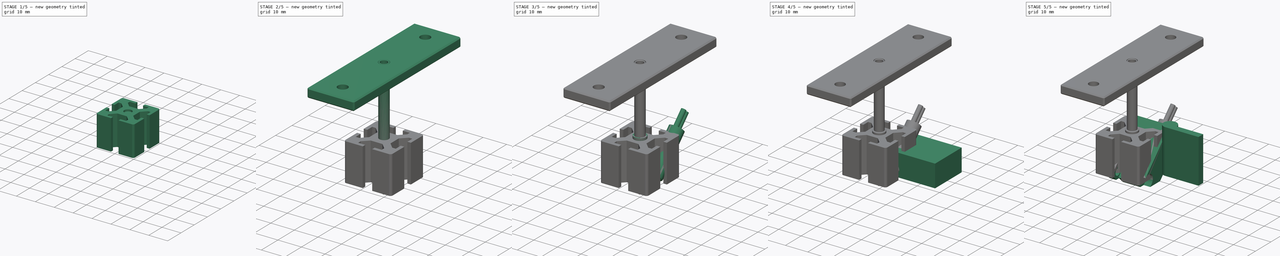
[diagram: build sequence overview — one tinted view per stage of 5, left to right]
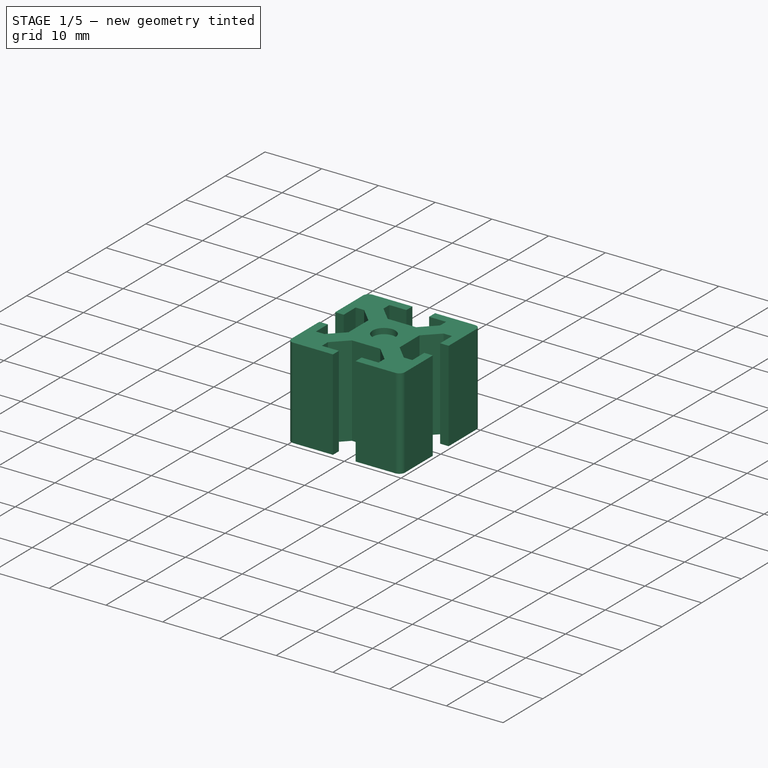
[diagram: stage 1 of 5 — iso view after this stage's code; geometry added in this stage tinted green]
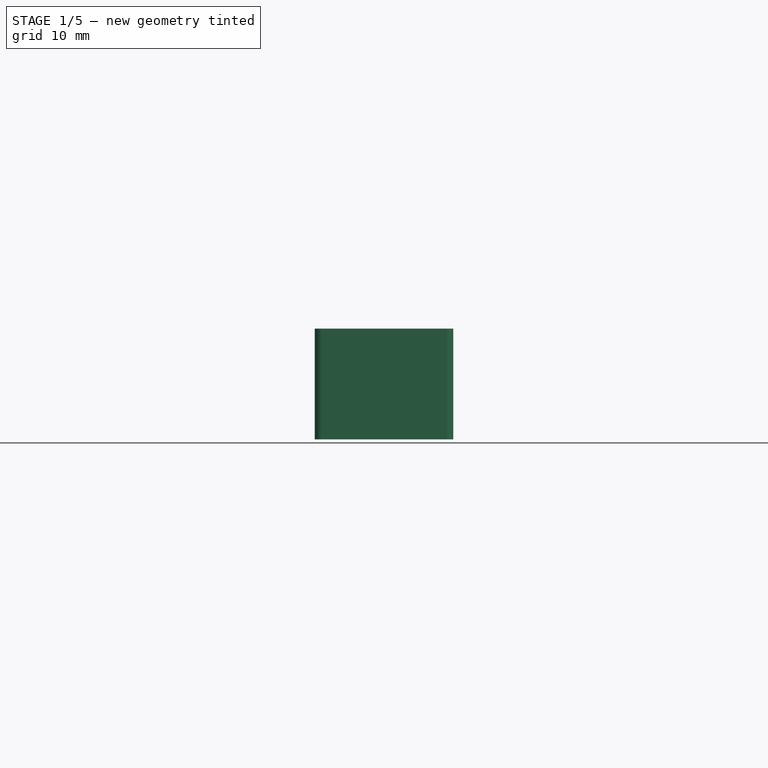
[diagram: stage 1 of 5 — front view after this stage's code; geometry added in this stage tinted green]
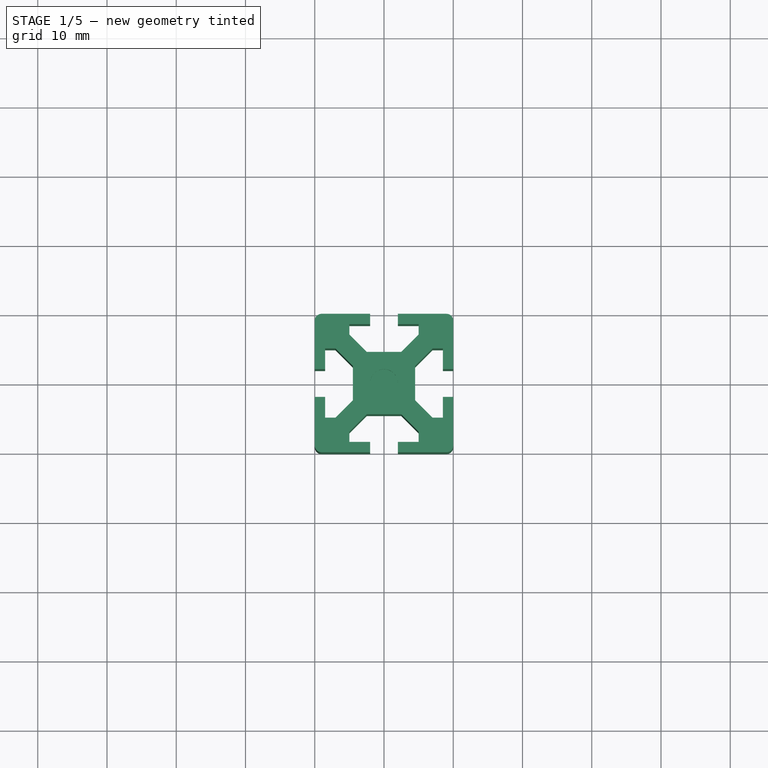
[diagram: stage 1 of 5 — top view after this stage's code; geometry added in this stage tinted green]
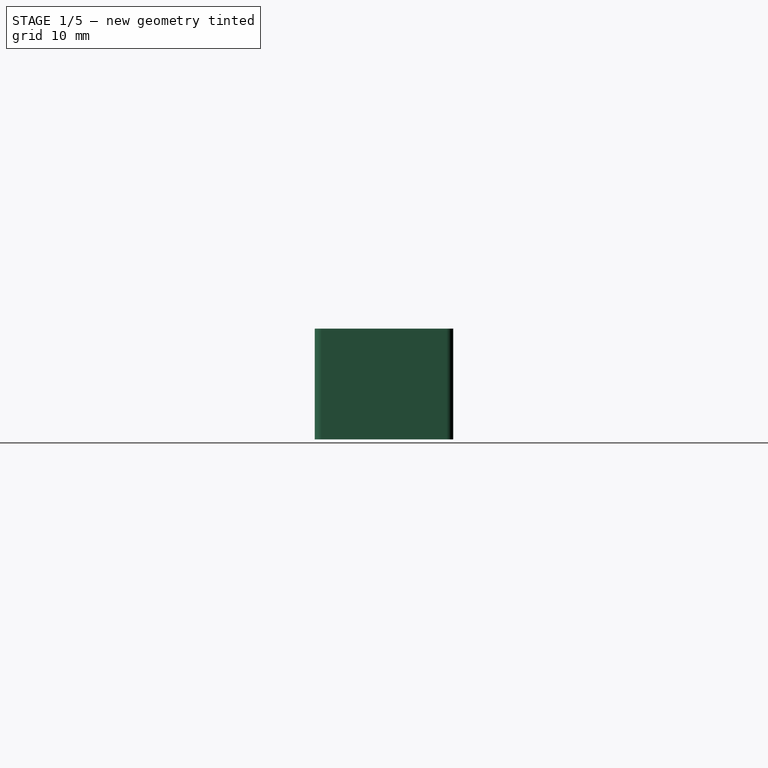
[diagram: stage 1 of 5 — right view after this stage's code; geometry added in this stage tinted green]
FCSTD DOCUMENT  (FreeCAD 0.15R4671 (Git))
Label: CatNozzle
License: CC-BY 3.0
LicenseURL: http://creativecommons.org/licenses/by/3.0/
objects: Sketcher::SketchObject×9, Part::Cylinder×9, PartDesign::Pocket×7, App::DocumentObjectGroup×7, PartDesign::Chamfer×6, Part::Feature×4, Part::MultiFuse×4, Part::Box×2, PartDesign::Pad×2, Part::Cut×2, Part::Chamfer×2, Part::Mirroring×2, Part::Fillet×1
note: 59 computed .brp shape members not serialized (recipe doc carries the construction recipe); baked Part::Feature solids carry a one-line shape summary decoded from their .brp

FEATURE [App::DocumentObjectGroup] Grupo005  label="PletinaSup"
  Group = -> [Chamfer007,Box001,Pocket008,Chamfer006]
FEATURE [Part::Cylinder] Cylinder008  label="Cilindro008"
  Angle = 360
  Height = 15
  Radius = 3
FEATURE [Part::Chamfer] Chamfer008
  Base = -> Cylinder008
  Edges = 1 edges r=2.5: [Edge3]
FEATURE [Sketcher::SketchObject] Sketch009
  sketch-geometry (16):
    g0: ArcOfCircle CenterX=0 CenterY=0 CenterZ=0 NormalX=0 NormalY=0 NormalZ=1 Radius=2 StartAngle=1.5708 EndAngle=3.14159
    g1: LineSegment StartX=-2 StartY=0 StartZ=0 EndX=-4.5 EndY=0 EndZ=0
    g2: LineSegment StartX=0 StartY=2 StartZ=0 EndX=0 EndY=4.5 EndZ=0
    g3: LineSegment StartX=-4.5 StartY=0 StartZ=0 EndX=-4.5 EndY=2.5 EndZ=0
    g4: LineSegment StartX=0 StartY=4.5 StartZ=0 EndX=-2.5 EndY=4.5 EndZ=0
    g5: LineSegment StartX=-4.5 StartY=2.5 StartZ=0 EndX=-7.00001 EndY=4.99999 EndZ=0
    g6: LineSegment StartX=-2.5 StartY=4.5 StartZ=0 EndX=-5 EndY=7 EndZ=0
    g7: LineSegment StartX=-7.00001 StartY=4.99999 StartZ=0 EndX=-8.50001 EndY=4.99999 EndZ=0
    g8: LineSegment StartX=-8.50001 StartY=4.99999 StartZ=0 EndX=-8.50001 EndY=1.99999 EndZ=0
    g9: LineSegment StartX=-8.50001 StartY=1.99999 StartZ=0 EndX=-10 EndY=1.99999 EndZ=0
    g10: LineSegment StartX=-5 StartY=7 StartZ=0 EndX=-5 EndY=8.5 EndZ=0
    g11: LineSegment StartX=-5 StartY=8.5 StartZ=0 EndX=-2 EndY=8.5 EndZ=0
    g12: LineSegment StartX=-2 StartY=8.5 StartZ=0 EndX=-2 EndY=10 EndZ=0
    g13: LineSegment StartX=-10 StartY=1.99999 StartZ=0 EndX=-10 EndY=9 EndZ=0
    g14: LineSegment StartX=-9.00001 StartY=10 StartZ=0 EndX=-2 EndY=10 EndZ=0
    g15: ArcOfCircle CenterX=-9.00001 CenterY=9 CenterZ=0 NormalX=0 NormalY=0 NormalZ=1 Radius=1 StartAngle=1.5708 EndAngle=3.14159
  constraints (47):
    c: Coincident(g0,g-1)
    c: Radius(g0) = 2
    c: Horizontal(g1)
    c: Vertical(g2)
    c: PointOnObject(g2,g-2)
    c: PointOnObject(g1,g-1)
    c: Coincident(g0,g2)
    c: Coincident(g0,g1)
    c: Equal(g1,g2)
    c: Coincident(g3,g1)
    c: Vertical(g3)
    c: Coincident(g4,g2)
    c: Horizontal(g4)
    c: Equal(g4,g3)
    c: DistanceY(g3) = 2.5
    c: DistanceX(g1) = -2.5
    c: Coincident(g5,g3)
    c: Coincident(g6,g4)
    c: Equal(g6,g5)
    c: Coincident(g5,g7)
    c: Horizontal(g7)
    c: Coincident(g7,g8)
    c: Vertical(g8)
    c: Coincident(g8,g9)
    c: Horizontal(g9)
    c: Coincident(g6,g10)
    c: Vertical(g10)
    c: Coincident(g10,g11)
    c: Horizontal(g11)
    c: Coincident(g11,g12)
    c: Vertical(g12)
    c: Tangent(g12,g0)
    c: Equal(g7,g10)
    c: Equal(g11,g8)
    c: Equal(g12,g9)
    c: DistanceX(g9) = -1.5
    c: DistanceX(g7) = -1.5
    c: Coincident(g9,g13)
    c: Vertical(g13)
    c: Coincident(g14,g12)
    c: Horizontal(g14)
    c: Tangent(g14,g15)
    c: Tangent(g13,g15)
    c: Radius(g15) = 1
    c: Equal(g14,g13)
    c: DistanceY(g8) = -3
    c: DistanceY(g-1,g12) = 10
FEATURE [PartDesign::Pad] Pad002
  Length = 16
  Length2 = 100
  Sketch = -> Sketch009
  Type = 0
FEATURE [Part::Mirroring] Part__Mirroring  label="Pad002 (Mirror #1)"
  Base = (0,0,0)
  Normal = (0,1,0)
  Source = -> Pad002
FEATURE [Part::MultiFuse] Fusion002
  Shapes = -> [Part__Mirroring,Pad002]
FEATURE [Part::Mirroring] Part__Mirroring001  label="Fusion002 (Mirror #2)"
  Base = (0,0,0)
  Normal = (1,0,0)
  Source = -> Fusion002
FEATURE [Part::MultiFuse] Fusion003
  Shapes = -> [Fusion002,Part__Mirroring001]
FEATURE [Part::Feature] Fusion004  label="PerfilTSlot"
  Placement = pos=(0,0,25) rot=(0,0,1;0rad)
  shape: bbox 20 x 20 x 16 mm, 51 faces (baked)
FEATURE [App::DocumentObjectGroup] Grupo006  label="Coldend"
  Group = -> [Fusion003,Fusion004]
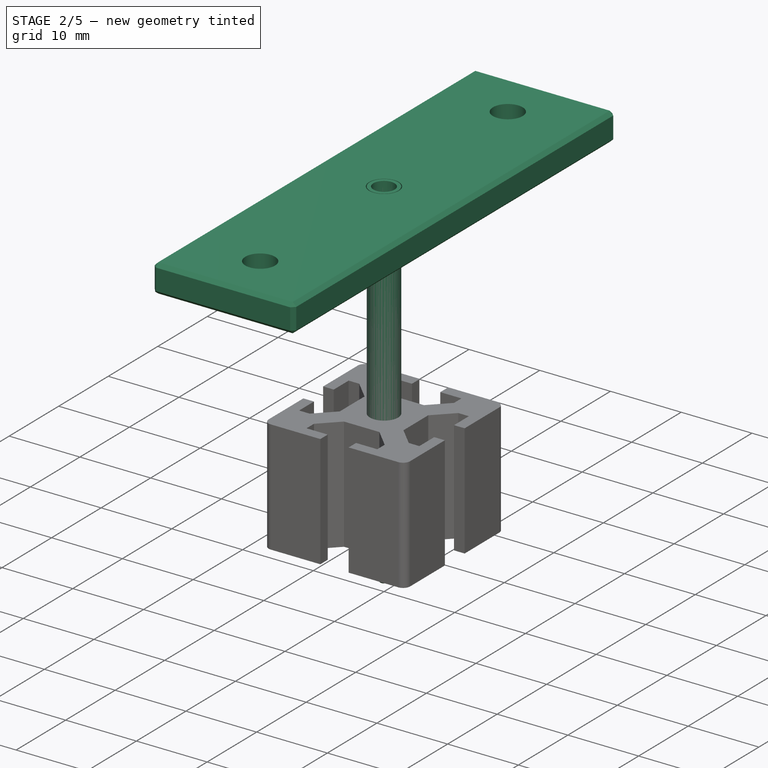
[diagram: stage 2 of 5 — iso view after this stage's code; geometry added in this stage tinted green]
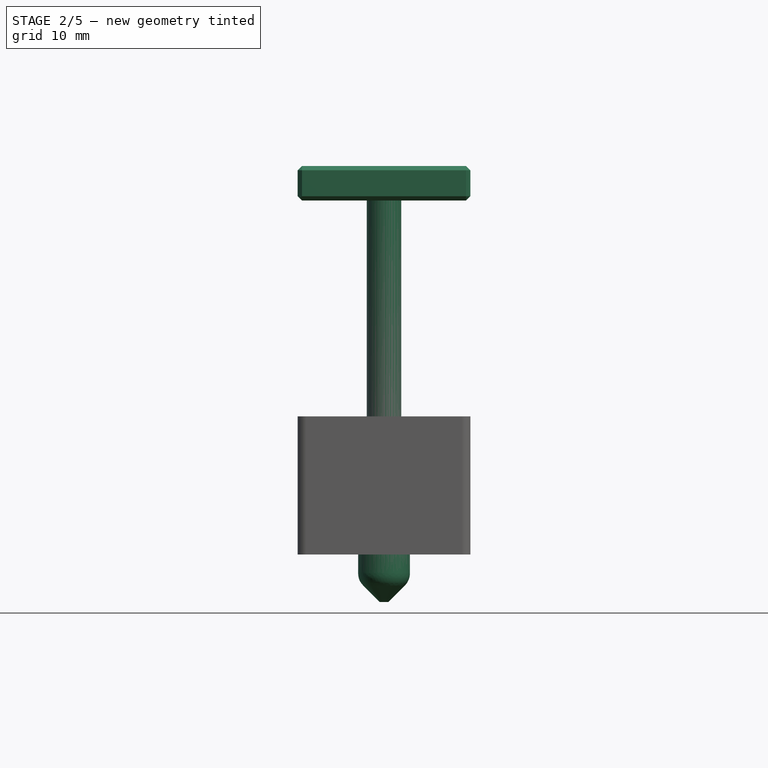
[diagram: stage 2 of 5 — front view after this stage's code; geometry added in this stage tinted green]
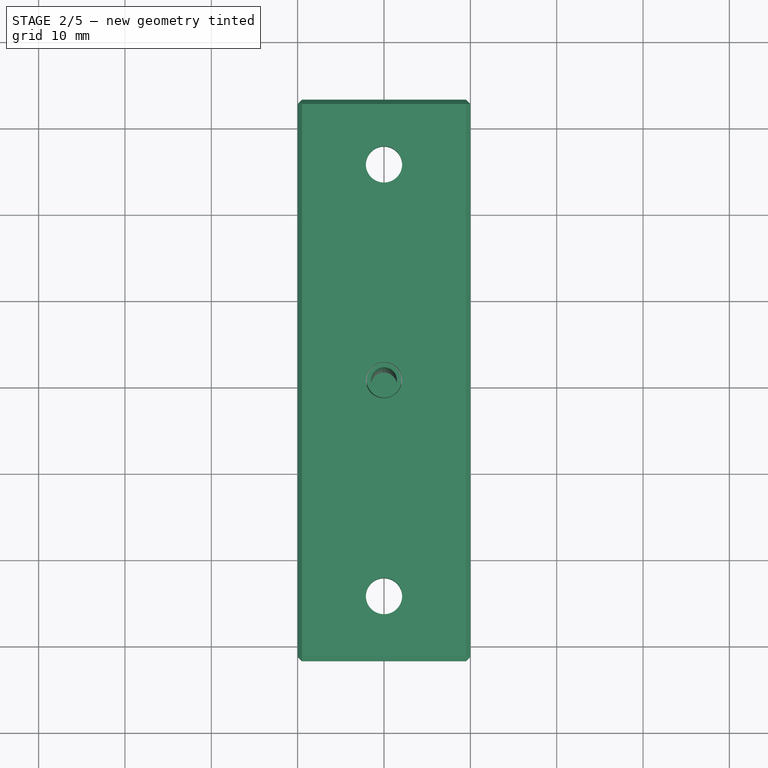
[diagram: stage 2 of 5 — top view after this stage's code; geometry added in this stage tinted green]
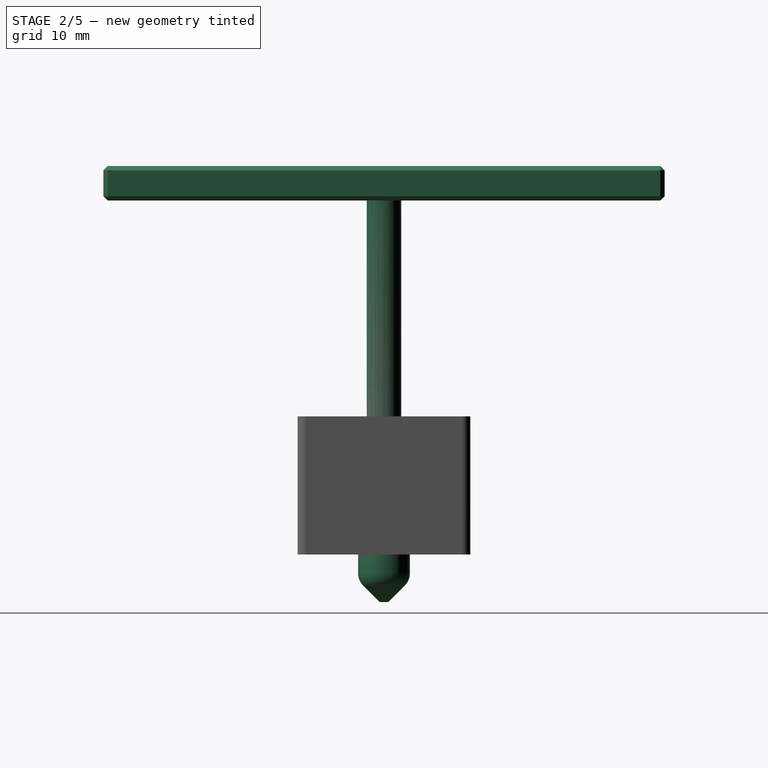
[diagram: stage 2 of 5 — right view after this stage's code; geometry added in this stage tinted green]
FEATURE [App::DocumentObjectGroup] Grupo004  label="Calefactor"
  Group = -> [Cylinder003,Fusion001]
FEATURE [Part::Cylinder] Cylinder006  label="Cilindro006"
  Angle = 360
  Height = 45
  Radius = 2
FEATURE [Part::Cylinder] Cylinder007  label="Cilindro007"
  Angle = 360
  Height = 45
  Radius = 1.5
FEATURE [Part::Cut] Cut001
  Base = -> Cylinder006
  Tool = -> Cylinder007
FEATURE [Part::Box] Box001  label="Cubo001"
  Height = 4
  Length = 20
  Placement = pos=(-10,-32.5,41) rot=(0,0,1;0rad)
  Width = 65
FEATURE [Sketcher::SketchObject] Sketch008
  ExternalGeometry = -> [Box001]
  Placement = pos=(-10,-32.5,45) rot=(0,0,1;0rad)
  Support = -> Box001 [Face6]
  sketch-geometry (5):
    g0: Circle CenterX=10 CenterY=32.5 CenterZ=0 NormalX=0 NormalY=0 NormalZ=1 Radius=2.1
    g1: Circle CenterX=10 CenterY=57.5 CenterZ=0 NormalX=0 NormalY=0 NormalZ=1 Radius=2.1
    g2: Circle CenterX=10 CenterY=7.5 CenterZ=0 NormalX=0 NormalY=0 NormalZ=1 Radius=2.1
    g3: LineSegment [constr] StartX=10 StartY=32.5 StartZ=0 EndX=10 EndY=57.5 EndZ=0
    g4: LineSegment [constr] StartX=10 StartY=32.5 StartZ=0 EndX=10 EndY=7.5 EndZ=0
  constraints (13):
    c: Equal(g0,g1)
    c: Equal(g1,g2)
    c: Radius(g1) = 2.1
    c: DistanceY(g1,g2) = -50
    c: DistanceX(g1,g-3) = 10
    c: DistanceY(g1,g-3) = 7.5
    c: Coincident(g3,g0)
    c: Coincident(g3,g1)
    c: Coincident(g4,g0)
    c: Coincident(g4,g2)
    c: Equal(g3,g4)
    c: Vertical(g3)
    c: Vertical(g4)
FEATURE [PartDesign::Pocket] Pocket008
  Length = 5
  Placement = pos=(-10,-32.5,41) rot=(0,0,1;0rad)
  Sketch = -> Sketch008
  Type = 1
FEATURE [PartDesign::Chamfer] Chamfer006
  Base = -> Pocket008 [Edge5,Edge6,Edge15,Edge14,Edge8,Edge9,Edge2,Edge7,Edge1]
  Placement = pos=(-10,-32.5,41) rot=(0,0,1;0rad)
  Size = 0.5
FEATURE [PartDesign::Chamfer] Chamfer007  label="Pletina"
  Base = -> Chamfer006 [Edge3,Edge1,Edge5]
  Placement = pos=(-10,-32.5,41) rot=(0,0,1;0rad)
  Size = 0.5
FEATURE [Part::Fillet] Fillet  label="Hotend"
  Base = -> Chamfer008
  Edges = 1 edges r=2: [Edge2]
  Placement = pos=(0,0,-5.5) rot=(0,0,1;0rad)
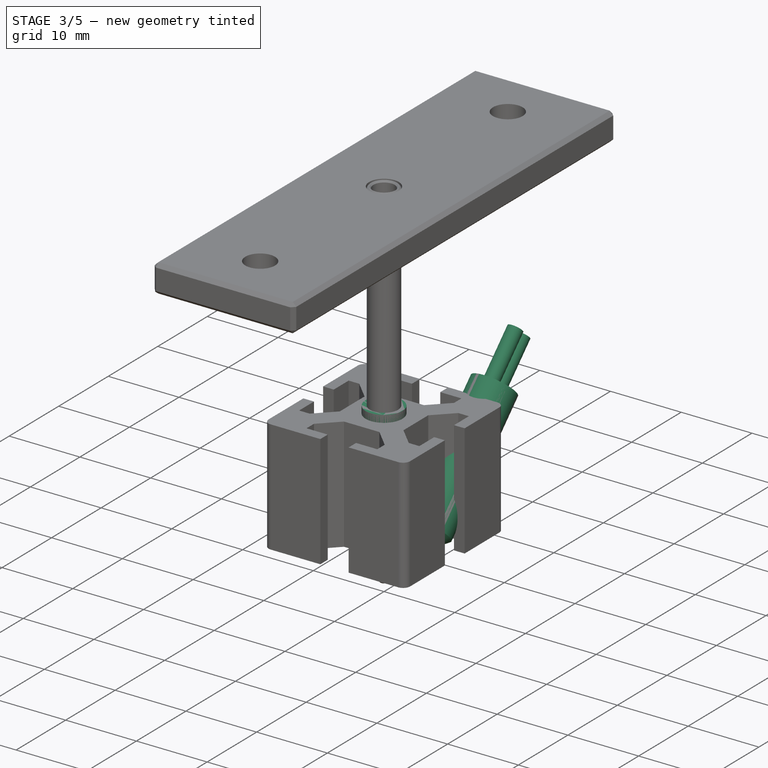
[diagram: stage 3 of 5 — iso view after this stage's code; geometry added in this stage tinted green]
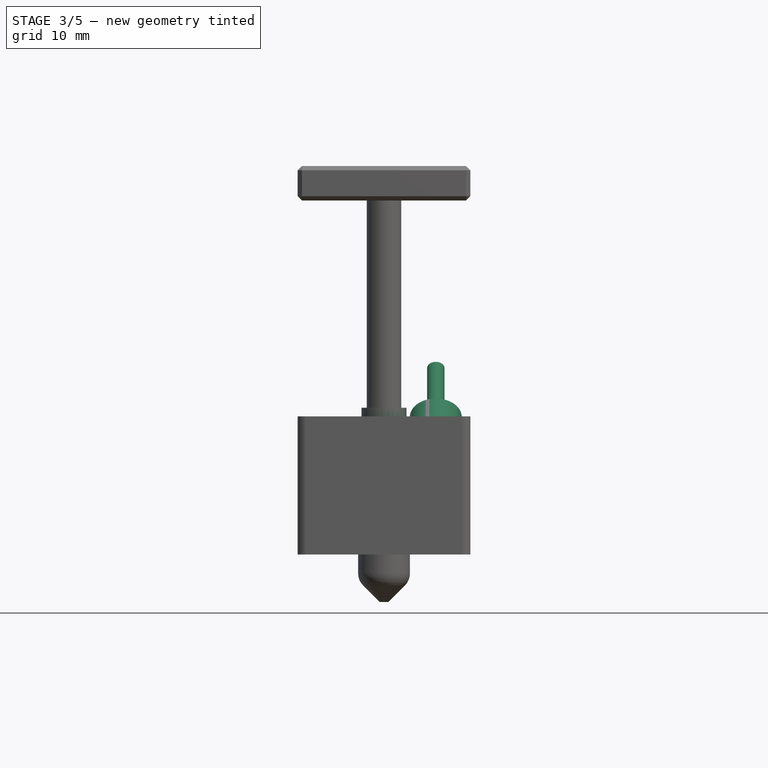
[diagram: stage 3 of 5 — front view after this stage's code; geometry added in this stage tinted green]
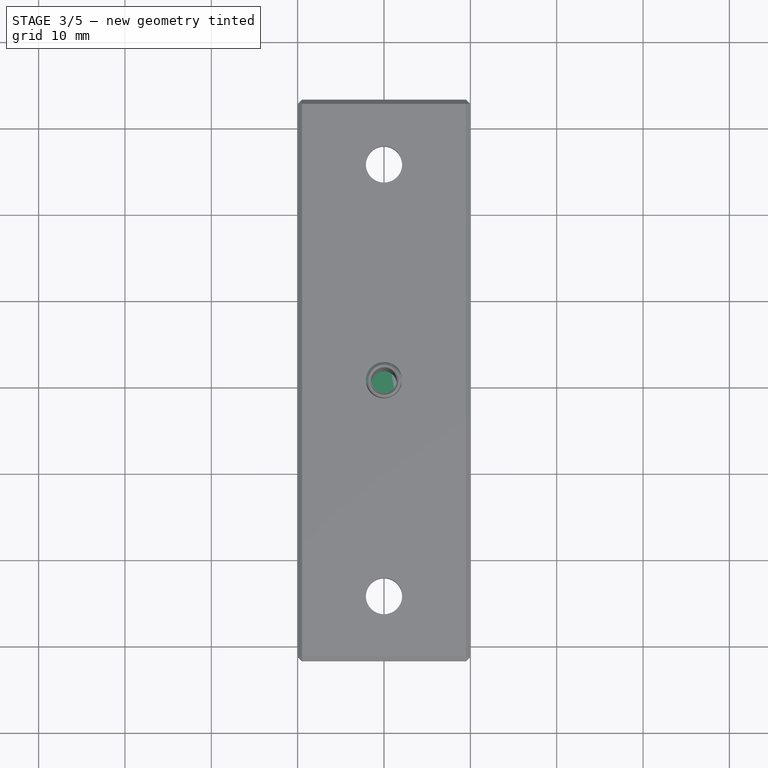
[diagram: stage 3 of 5 — top view after this stage's code; geometry added in this stage tinted green]
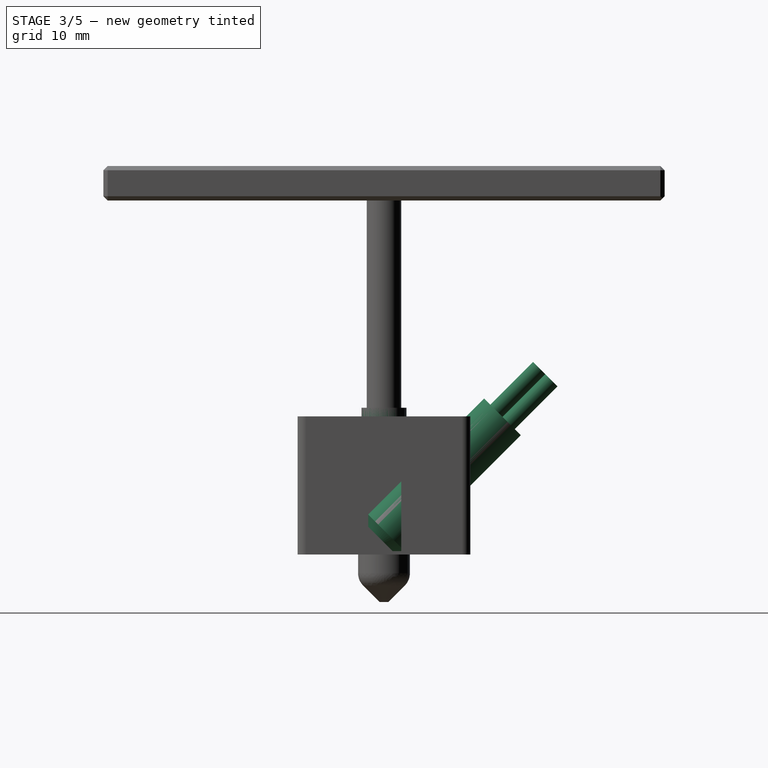
[diagram: stage 3 of 5 — right view after this stage's code; geometry added in this stage tinted green]
FEATURE [Part::Cylinder] Cylinder002  label="Cilindro002"
  Angle = 360
  Height = 3
  Placement = pos=(0,0,14) rot=(0,0,1;0rad)
  Radius = 2.6
FEATURE [App::DocumentObjectGroup] Grupo003  label="TornilloAllen"
  Group = -> [Fusion,Pocket007,Chamfer002]
FEATURE [Part::Feature] Chamfer003  label="Tornillo14mm"
  Placement = pos=(-6,-5.00965,0.393398) rot=(-0.357407,0.862856,-0.357407;1.71777rad)
  shape: bbox 17 x 5.2 x 5.2 mm, 14 faces (baked)
FEATURE [App::DocumentObjectGroup] Grupo001  label="Tornillos"
  Group = -> [Grupo002,Pocket005,Grupo003,Chamfer003]
FEATURE [Part::Cylinder] Cylinder003  label="Cilindro003"
  Angle = 360
  Height = 20
  Radius = 3
FEATURE [PartDesign::Chamfer] Chamfer004
  Base = -> Cylinder003 [Edge3]
  Size = 1
FEATURE [Part::Cylinder] Cylinder004  label="Cilindro004"
  Angle = 360
  Height = 8
  Placement = pos=(-1,0,19) rot=(0,0,1;0rad)
  Radius = 1
FEATURE [Part::Cylinder] Cylinder005  label="Cilindro005"
  Angle = 360
  Height = 8
  Placement = pos=(1,0,19) rot=(0,0,1;0rad)
  Radius = 1
FEATURE [Part::MultiFuse] Fusion001  label="Resistencia"
  Placement = pos=(6,-0.413456,1.80761) rot=(-0.357407,-0.357407,-0.862856;1.71777rad)
  Shapes = -> [Chamfer004,Cylinder004,Cylinder005]
FEATURE [Part::Chamfer] Chamfer005  label="idle"
  Base = -> Cut001
  Edges = 2 edges r=0.2: [Edge1,Edge4]
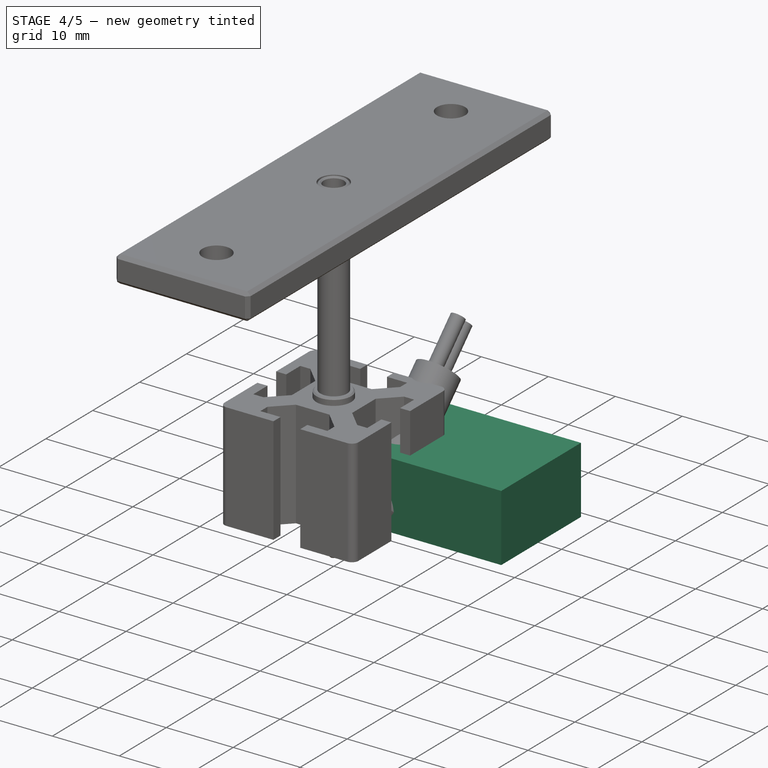
[diagram: stage 4 of 5 — iso view after this stage's code; geometry added in this stage tinted green]
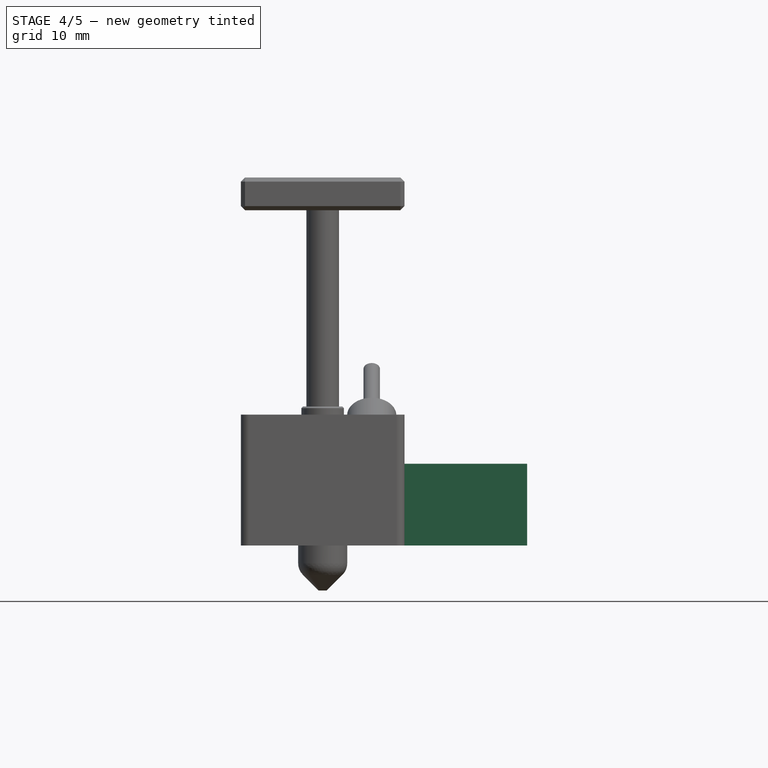
[diagram: stage 4 of 5 — front view after this stage's code; geometry added in this stage tinted green]
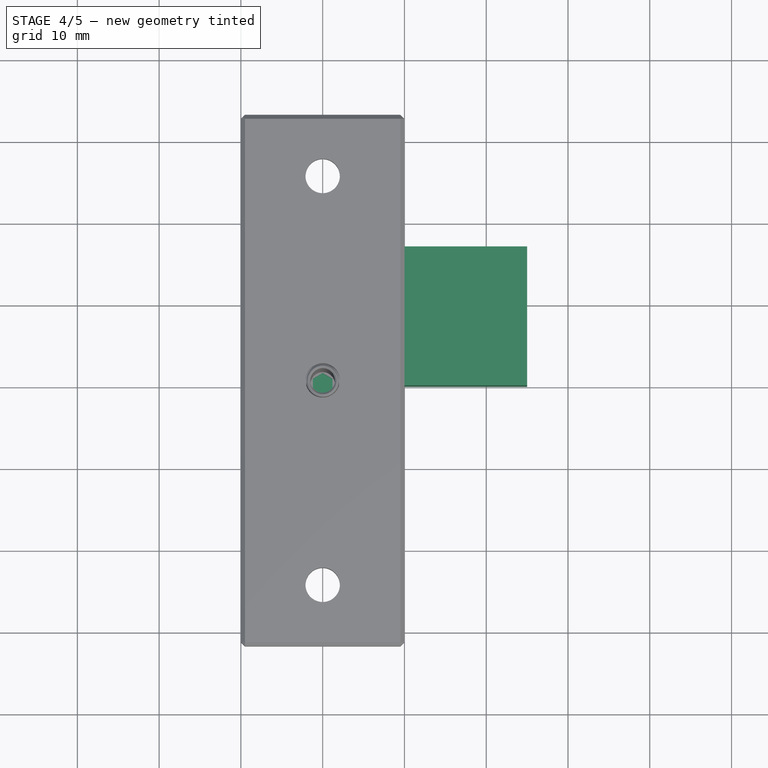
[diagram: stage 4 of 5 — top view after this stage's code; geometry added in this stage tinted green]
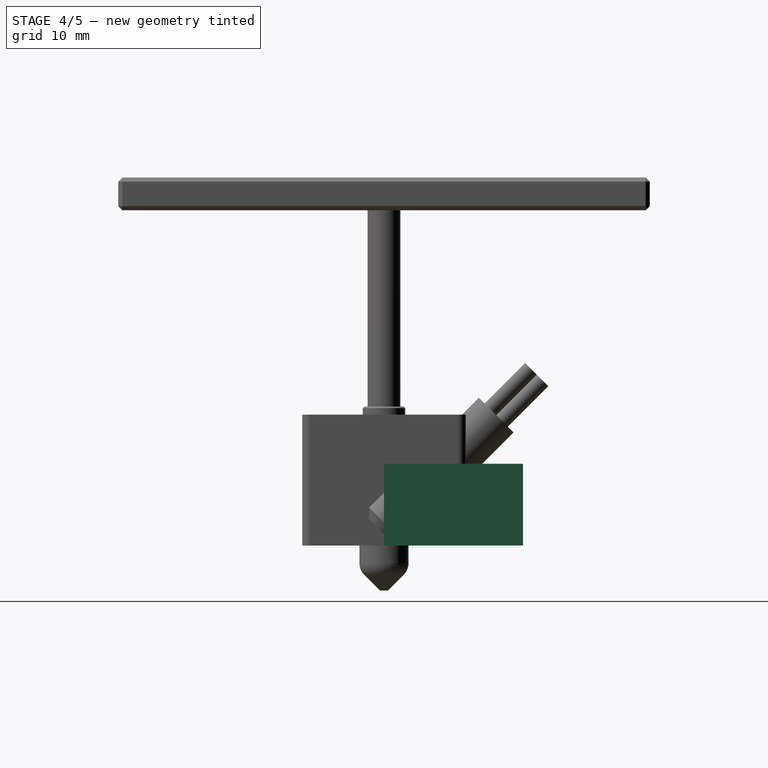
[diagram: stage 4 of 5 — right view after this stage's code; geometry added in this stage tinted green]
FEATURE [Part::Box] Box  label="Cubo"
  Height = 10
  Length = 25
  Width = 17
FEATURE [Part::Cylinder] Cylinder  label="Cilindro"
  Angle = 360
  Height = 4
  Radius = 1.5
FEATURE [App::DocumentObjectGroup] Grupo  label="bloque"
  Group = -> [Box,Chamfer,Pocket,Pocket001,Pocket002,Pad,Cut]
FEATURE [PartDesign::Chamfer] Chamfer001
  Base = -> Cylinder [Edge1,Edge3]
  Size = 0.2
FEATURE [Sketcher::SketchObject] Sketch006
  Placement = pos=(0,0,4) rot=(0,0,1;0rad)
  Support = -> Chamfer001 [Face5]
  sketch-geometry (7):
    g0: LineSegment StartX=1.2 StartY=0.69282 StartZ=0 EndX=1.2 EndY=-0.69282 EndZ=0
    g1: LineSegment StartX=1.2 StartY=-0.69282 StartZ=0 EndX=0 EndY=-1.38564 EndZ=0
    g2: LineSegment StartX=0 StartY=-1.38564 StartZ=0 EndX=-1.2 EndY=-0.69282 EndZ=0
    g3: LineSegment StartX=-1.2 StartY=-0.69282 StartZ=0 EndX=-1.2 EndY=0.69282 EndZ=0
    g4: LineSegment StartX=-1.2 StartY=0.69282 StartZ=0 EndX=0 EndY=1.38564 EndZ=0
    g5: LineSegment StartX=0 StartY=1.38564 StartZ=0 EndX=1.2 EndY=0.69282 EndZ=0
    g6: LineSegment [constr] StartX=-1.2 StartY=0.69282 StartZ=0 EndX=0 EndY=0 EndZ=0
  constraints (20):
    c: Coincident(g0,g1)
    c: Coincident(g1,g2)
    c: Coincident(g2,g3)
    c: Vertical(g3)
    c: Coincident(g3,g4)
    c: Vertical(g0)
    c: PointOnObject(g4,g-2)
    c: PointOnObject(g1,g-2)
    c: Coincident(g5,g4)
    c: Coincident(g5,g0)
    c: Equal(g3,g4)
    c: Equal(g4,g5)
    c: Equal(g5,g0)
    c: Equal(g0,g1)
    c: Equal(g1,g2)
    c: Symmetric(g1,g4,g-1)
    c: Coincident(g6,g3)
    c: Coincident(g6,g-1)
    c: Angle(g-2,g6) = 1.0472
    c: DistanceX(g2,g0) = 2.4
FEATURE [Part::Feature] Pocket005  label="TornilloM3-4mm001"
  Placement = pos=(6,7.36472,12.4142) rot=(0.357407,0.357407,-0.862856;1.71777rad)
  shape: bbox 3 x 4.667 x 4.667 mm, 17 faces (baked)
FEATURE [Part::Cylinder] Cylinder001  label="Cilindro001"
  Angle = 360
  Height = 15
  Radius = 1.5
FEATURE [Part::MultiFuse] Fusion
  Shapes = -> [Cylinder002,Cylinder001]
FEATURE [Sketcher::SketchObject] Sketch007
  Placement = pos=(0,0,17) rot=(0,0,1;0rad)
  Support = -> Fusion [Face2]
  sketch-geometry (7):
    g0: LineSegment StartX=0 StartY=1.38564 StartZ=0 EndX=1.2 EndY=0.69282 EndZ=0
    g1: LineSegment StartX=1.2 StartY=0.69282 StartZ=0 EndX=1.2 EndY=-0.69282 EndZ=0
    g2: LineSegment StartX=1.2 StartY=-0.69282 StartZ=0 EndX=0 EndY=-1.38564 EndZ=0
    g3: LineSegment StartX=0 StartY=-1.38564 StartZ=0 EndX=-1.2 EndY=-0.69282 EndZ=0
    g4: LineSegment StartX=-1.2 StartY=-0.69282 StartZ=0 EndX=-1.2 EndY=0.69282 EndZ=0
    g5: LineSegment StartX=-1.2 StartY=0.69282 StartZ=0 EndX=0 EndY=1.38564 EndZ=0
    g6: LineSegment [constr] StartX=-1.2 StartY=0.69282 StartZ=0 EndX=0 EndY=0 EndZ=0
  constraints (20):
    c: PointOnObject(g0,g-2)
    c: Coincident(g0,g1)
    c: Vertical(g1)
    c: Coincident(g1,g2)
    c: PointOnObject(g2,g-2)
    c: Coincident(g2,g3)
    c: Coincident(g3,g4)
    c: Vertical(g4)
    c: Coincident(g4,g5)
    c: Coincident(g5,g0)
    c: Symmetric(g0,g2,g-1)
    c: Equal(g0,g1)
    c: Equal(g1,g2)
    c: Equal(g2,g3)
    c: Equal(g3,g4)
    c: Equal(g4,g5)
    c: Coincident(g6,g4)
    c: Coincident(g6,g-1)
    c: Angle(g-2,g6) = 1.0472
    c: DistanceX(g1,g3) = -2.4
FEATURE [PartDesign::Pocket] Pocket006
  Length = 1.5
  Sketch = -> Sketch006
  Type = 0
FEATURE [App::DocumentObjectGroup] Grupo002  label="TornillosinCabeza"
  Group = -> [Cylinder,Chamfer001,Pocket006]
FEATURE [PartDesign::Pocket] Pocket007
  Length = 1.5
  Sketch = -> Sketch007
  Type = 0
FEATURE [PartDesign::Chamfer] Chamfer002  label="TornilloM3-14mm"
  Base = -> Pocket007 [Edge1,Edge24]
  Size = 0.2
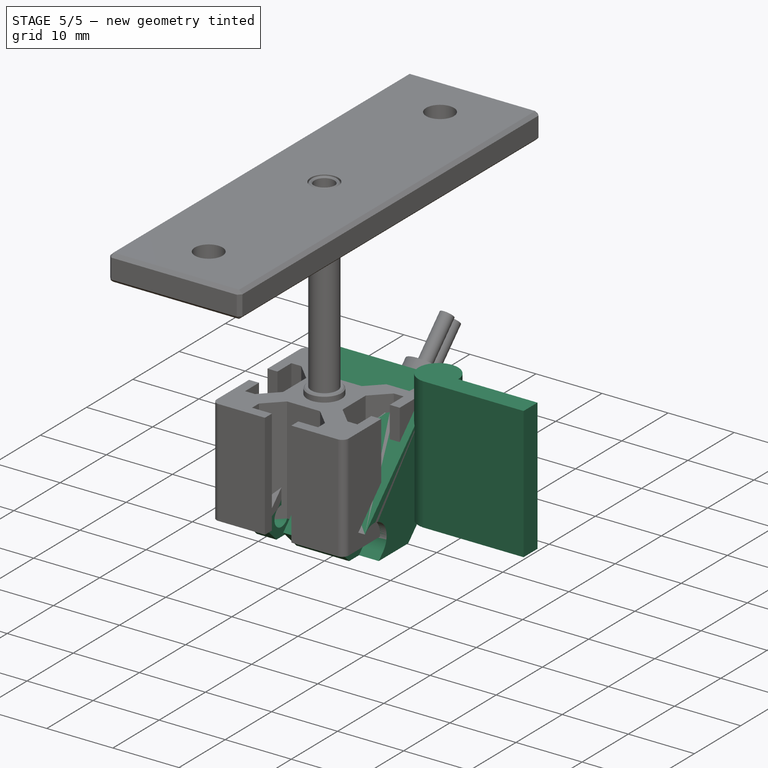
[diagram: stage 5 of 5 — iso view after this stage's code; geometry added in this stage tinted green]
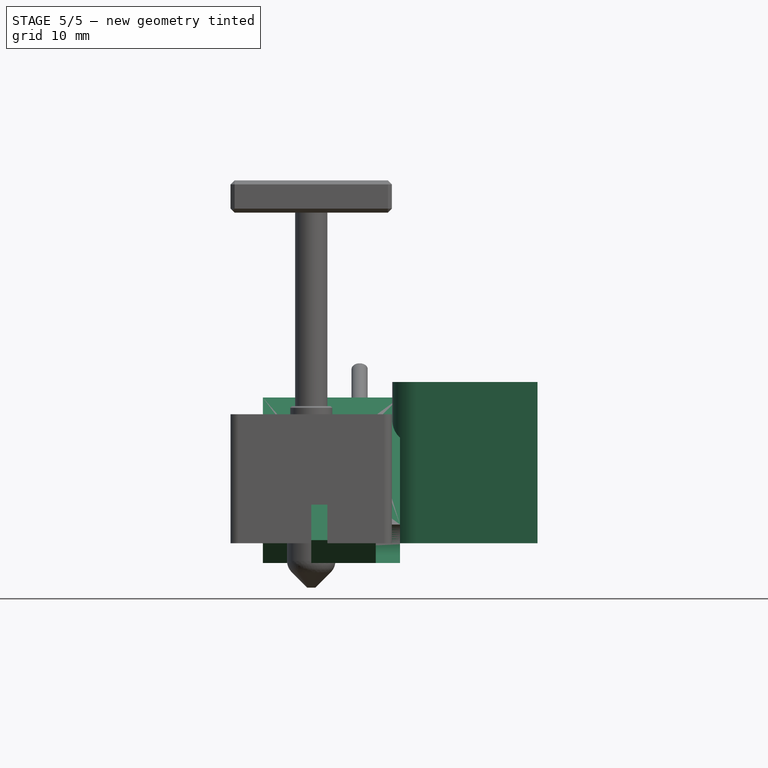
[diagram: stage 5 of 5 — front view after this stage's code; geometry added in this stage tinted green]
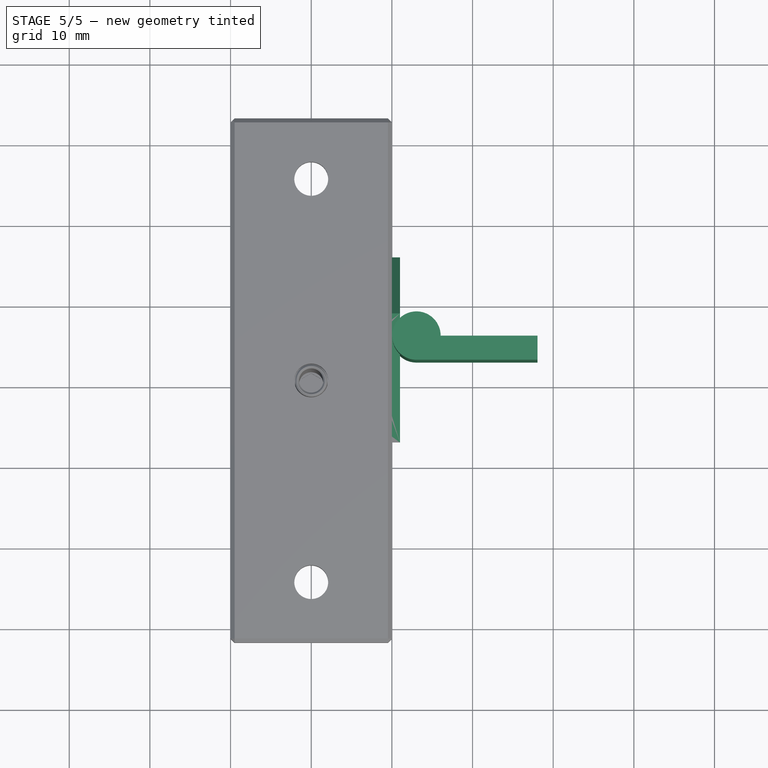
[diagram: stage 5 of 5 — top view after this stage's code; geometry added in this stage tinted green]
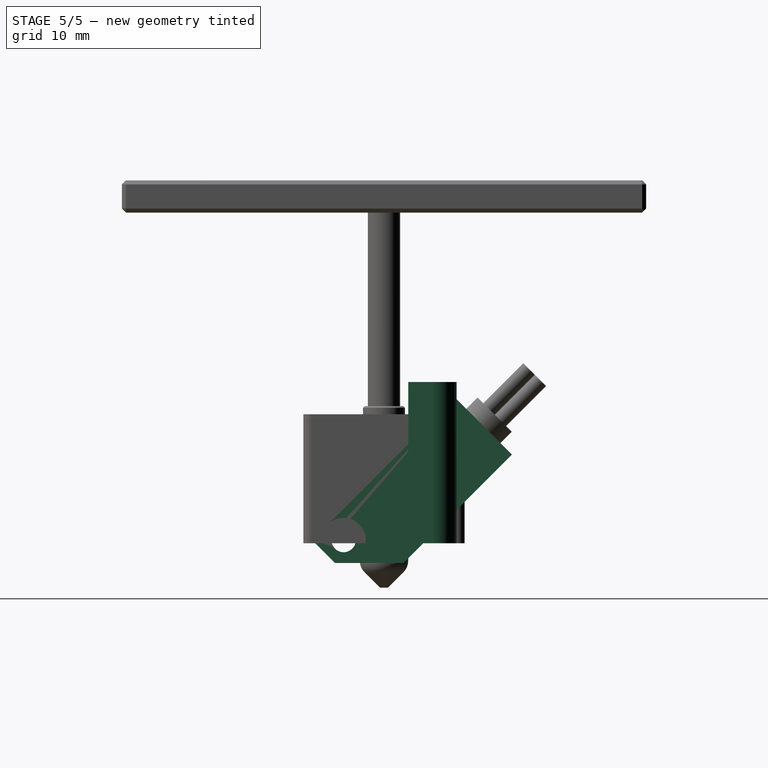
[diagram: stage 5 of 5 — right view after this stage's code; geometry added in this stage tinted green]
FEATURE [PartDesign::Chamfer] Chamfer
  Base = -> Box [Edge8]
  Size = 6
FEATURE [Sketcher::SketchObject] Sketch001
  ExternalGeometry = -> [Chamfer]
  Placement = pos=(0,0,0) rot=(0.57735,-0.57735,-0.57735;2.0944rad)
  Support = -> Chamfer [Face7]
  sketch-geometry (2):
    g0: Circle CenterX=-12 CenterY=5 CenterZ=0 NormalX=0 NormalY=0 NormalZ=1 Radius=3
    g1: Circle CenterX=-4.5 CenterY=5 CenterZ=0 NormalX=0 NormalY=0 NormalZ=1 Radius=1
  constraints (6):
    c: Radius(g0) = 3
    c: Radius(g1) = 1
    c: DistanceX(g-3,g0) = 5
    c: DistanceY(g0,g-3) = 5
    c: DistanceX(g1,g-3) = 4.5
    c: DistanceY(g1,g-3) = 5
FEATURE [PartDesign::Pocket] Pocket
  Length = 18
  Sketch = -> Sketch001
  Type = 0
FEATURE [Sketcher::SketchObject] Sketch
  ExternalGeometry = -> [Pocket]
  Placement = pos=(0,17,0) rot=(0,0.707107,0.707107;3.14159rad)
  Support = -> Pocket [Face5]
  sketch-geometry (1):
    g0: Circle CenterX=-22.25 CenterY=7.25 CenterZ=0 NormalX=0 NormalY=0 NormalZ=1 Radius=1.5
  constraints (3):
    c: DistanceX(g-3,g0) = 2.75
    c: DistanceY(g-3,g0) = -2.75
    c: Radius(g0) = 1.5
FEATURE [PartDesign::Pocket] Pocket001
  Length = 5
  Sketch = -> Sketch
  Type = 1
FEATURE [Sketcher::SketchObject] Sketch002
  ExternalGeometry = -> [Pocket001]
  Placement = pos=(0,17,0) rot=(0,0.707107,0.707107;3.14159rad)
  Support = -> Pocket001 [Face5]
  sketch-geometry (4):
    g0: ArcOfCircle CenterX=-22.25 CenterY=7.25 CenterZ=0 NormalX=0 NormalY=0 NormalZ=1 Radius=2.75 StartAngle=4.71239 EndAngle=7.85399
    g1: LineSegment StartX=-22.25 StartY=4.5 StartZ=0 EndX=-26.25 EndY=4.5 EndZ=0
    g2: LineSegment StartX=-26.25 StartY=4.5 StartZ=0 EndX=-26.25 EndY=10 EndZ=0
    g3: LineSegment StartX=-26.25 StartY=10 StartZ=0 EndX=-22.25 EndY=10 EndZ=0
  constraints (12):
    c: Radius(g0) = 2.75
    c: Coincident(g0,g-3)
    c: Horizontal(g1)
    c: Tangent(g1,g0)
    c: Coincident(g1,g2)
    c: Vertical(g2)
    c: Coincident(g2,g3)
    c: Horizontal(g3)
    c: Tangent(g3,g0)
    c: Coincident(g0,g1)
    c: Coincident(g0,g3)
    c: DistanceX(g3) = 4
FEATURE [PartDesign::Pocket] Pocket002
  Length = 3
  Sketch = -> Sketch002
  Type = 0
FEATURE [Sketcher::SketchObject] Sketch004
  sketch-geometry (4):
    g0: ArcOfCircle CenterX=13.0459 CenterY=6 CenterZ=0 NormalX=0 NormalY=0 NormalZ=1 Radius=3 StartAngle=0 EndAngle=4.71239
    g1: LineSegment StartX=13.0459 StartY=3 StartZ=0 EndX=28.0459 EndY=3 EndZ=0
    g2: LineSegment StartX=28.0459 StartY=3 StartZ=0 EndX=28.0459 EndY=6 EndZ=0
    g3: LineSegment StartX=28.0459 StartY=6 StartZ=0 EndX=16.0459 EndY=6 EndZ=0
  constraints (12):
    c: Radius(g0) = 3
    c: DistanceY(g-1,g0) = 6
    c: Coincident(g1,g2)
    c: Coincident(g2,g3)
    c: Horizontal(g1)
    c: Horizontal(g3)
    c: Vertical(g2)
    c: Tangent(g0,g1)
    c: DistanceY(g2) = 3
    c: Coincident(g3,g0)
    c: Coincident(g0,g1)
    c: DistanceX(g1) = 15
FEATURE [PartDesign::Pad] Pad
  Length = 20
  Length2 = 100
  Sketch = -> Sketch004
  Type = 0
FEATURE [Sketcher::SketchObject] Sketch005
  ExternalGeometry = -> [Pocket002]
  Placement = pos=(0,0,10) rot=(0,0,1;0rad)
  Support = -> Pocket002 [Face3]
  sketch-geometry (1):
    g0: Circle CenterX=5 CenterY=12 CenterZ=0 NormalX=0 NormalY=0 NormalZ=1 Radius=1.5
  constraints (3):
    c: Radius(g0) = 1.5
    c: DistanceX(g0,g-3) = -5
    c: DistanceY(g0,g-3) = 5
FEATURE [PartDesign::Pocket] Pocket003
  Length = 3
  Sketch = -> Sketch005
  Type = 0
FEATURE [Part::Feature] Pad001
  Placement = pos=(12,0,-8) rot=(0,-1,0;0.785398rad)
  shape: bbox 26.87 x 6 x 26.87 mm, 6 faces (baked)
FEATURE [Part::Cut] Cut  label="BloqueCalefactor"
  Base = -> Pocket003
  Placement = pos=(-6,15.85,11) rot=(0.357407,0.357407,-0.862856;1.71777rad)
  Tool = -> Pad001
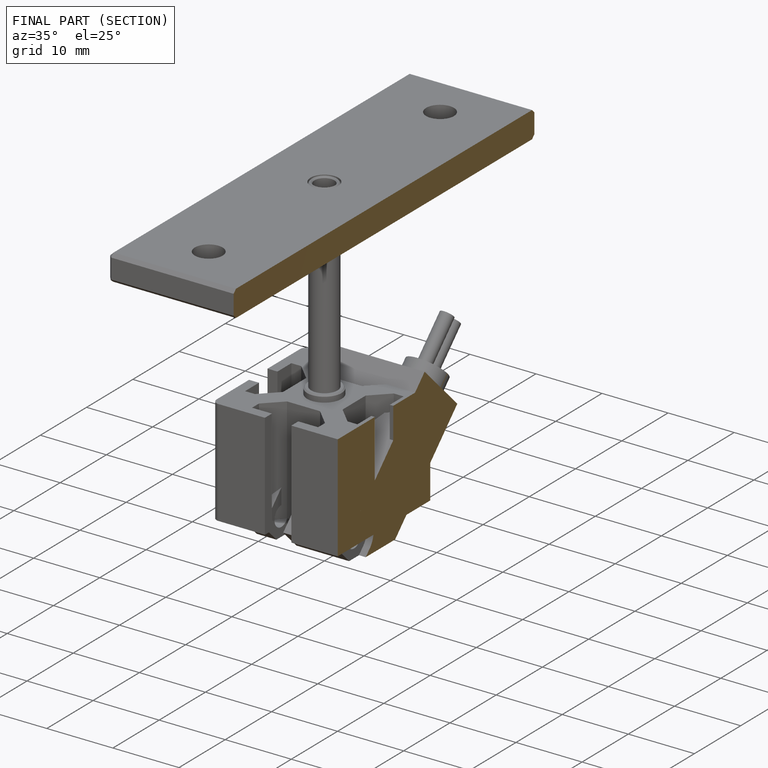
[diagram: finished part — half-section view (interior)]
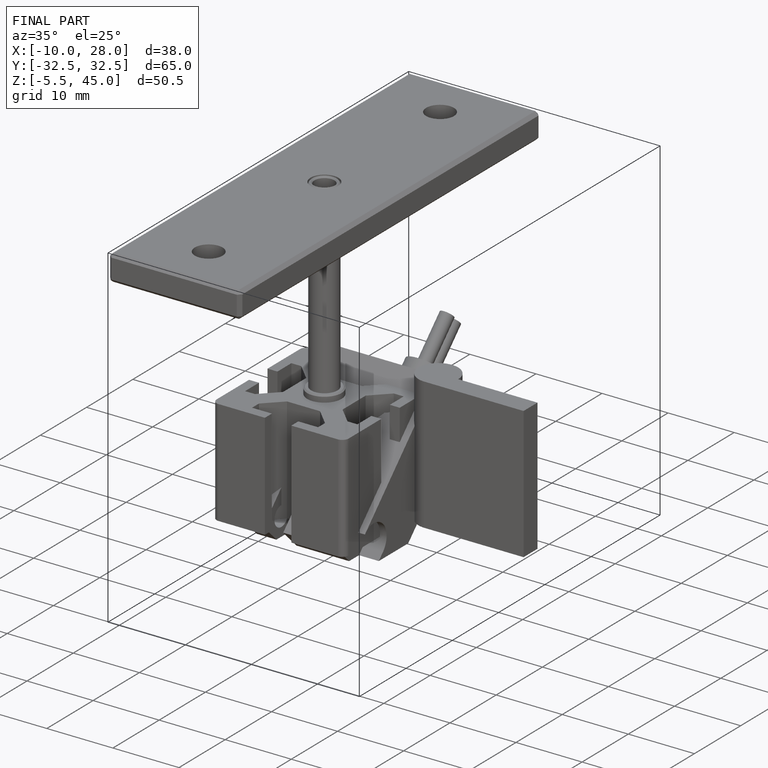
[diagram: finished part — iso view with bounding-box wireframe]
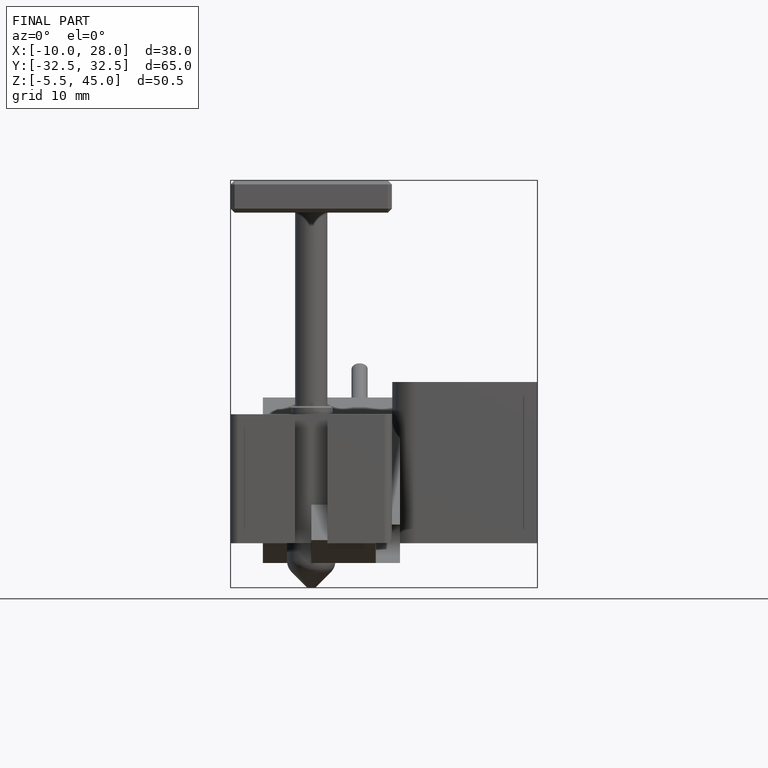
[diagram: finished part — front view with bounding-box wireframe]
